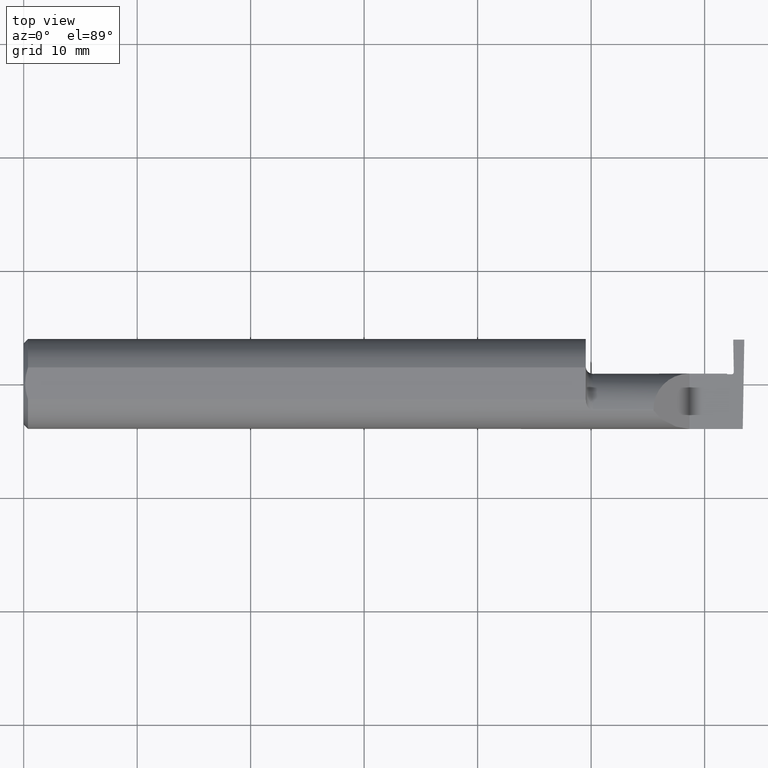
[diagram: clean part render]
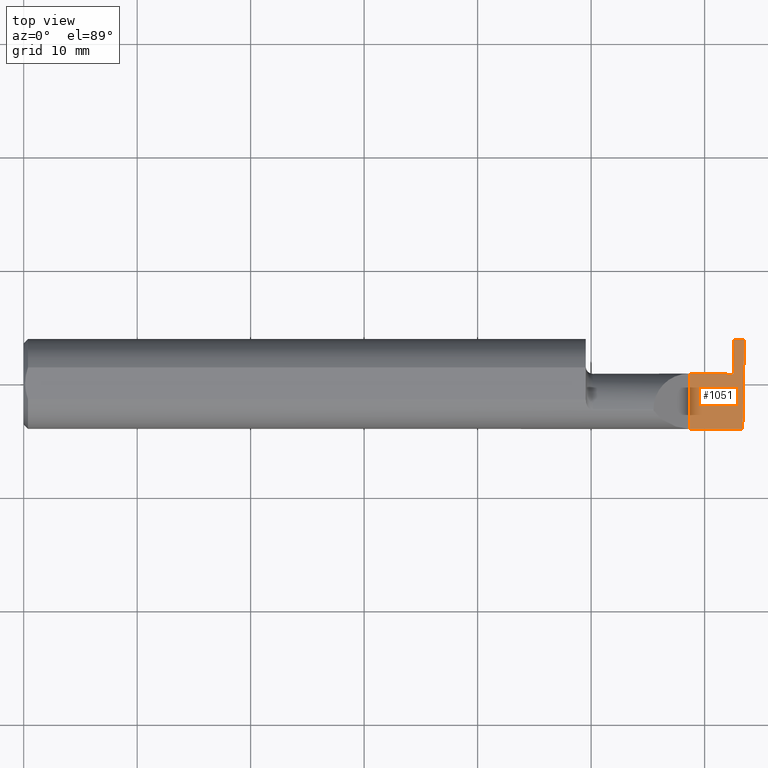
[diagram: same view with one face highlighted and labeled with its STEP entity id]
A machine part, top view. The second image highlights one B-rep face of the part: STEP entity #1051.
In plain terms, the highlighted planar face has unit normal (-0, 0, -1).
Its self-contained STEP definition (entity closure, byte-faithful):
#1 = CARTESIAN_POINT ( 'NONE',  ( 2.500000000000000000, 0.1539000000000000090, 0.000000000000000000 ) ) ;
#7 = VERTEX_POINT ( 'NONE', #173 ) ;
#19 = CARTESIAN_POINT ( 'NONE',  ( 2.441500000003368420, 0.03390000000033598776, -4.822709006013936333E-11 ) ) ;
#32 = CARTESIAN_POINT ( 'NONE',  ( 2.463542847896578625, 0.03686532263356468581, -1.231239365514285891E-10 ) ) ;
#46 = CARTESIAN_POINT ( 'NONE',  ( 2.310000000000000053, 0.03589999999999998748, 2.326828918379970872E-17 ) ) ;
#51 = VERTEX_POINT ( 'NONE', #673 ) ;
#79 = EDGE_CURVE ( 'NONE', #712, #605, #559, .T. ) ;
#81 = CARTESIAN_POINT ( 'NONE',  ( 2.461499999986525022, 0.1539000000000000090, -2.694222958124035986E-19 ) ) ;
#86 = ORIENTED_EDGE ( 'NONE', *, *, #344, .F. ) ;
#97 = ORIENTED_EDGE ( 'NONE', *, *, #936, .F. ) ;
#103 = B_SPLINE_CURVE_WITH_KNOTS ( 'NONE', 1,
 ( #532, #624 ),
 .UNSPECIFIED., .F., .F.,
 ( 2, 2 ),
 ( 0.000000000000000000, 0.0003802724434284823762 ),
 .UNSPECIFIED. ) ;
#105 = CARTESIAN_POINT ( 'NONE',  ( 2.494588929872255001, -0.1561000000000000443, 0.000000000000000000 ) ) ;
#112 = EDGE_CURVE ( 'NONE', #7, #712, #103, .T. ) ;
#143 = AXIS2_PLACEMENT_3D ( 'NONE', #163, #831, #1079 ) ;
#146 = DIRECTION ( 'NONE',  ( -0.000000000000000000, 1.000000000000000000, -0.000000000000000000 ) ) ;
#163 = CARTESIAN_POINT ( 'NONE',  ( 2.500000000000000000, -0.2000000000000000111, 0.000000000000000000 ) ) ;
#170 = VERTEX_POINT ( 'NONE', #46 ) ;
#173 = CARTESIAN_POINT ( 'NONE',  ( 2.456471356043859799, 0.03389999999999732117, -4.694856722559639658E-11 ) ) ;
#186 = LINE ( 'NONE', #771, #397 ) ;
#190 = EDGE_CURVE ( 'NONE', #818, #263, #822, .T. ) ;
#241 = DIRECTION ( 'NONE',  ( 1.000000000000000000, 0.000000000000000000, 0.000000000000000000 ) ) ;
#263 = VERTEX_POINT ( 'NONE', #973 ) ;
#266 = CARTESIAN_POINT ( 'NONE',  ( 2.399999999999999911, 0.1539000000000000090, -2.694222958124035986E-19 ) ) ;
#287 = CARTESIAN_POINT ( 'NONE',  ( 2.439500000000000668, 0.03590000000000006380, 7.121324356843854204E-18 ) ) ;
#290 = CARTESIAN_POINT ( 'NONE',  ( 2.461499999986525022, 0.1539000000000000090, -2.694222958124035986E-19 ) ) ;
#293 = CARTESIAN_POINT ( 'NONE',  ( 3.749399456654646757E-32, -0.1560999999999999888, 3.061616997868384127E-16 ) ) ;
#312 = LINE ( 'NONE', #490, #786 ) ;
#344 = EDGE_CURVE ( 'NONE', #263, #170, #312, .T. ) ;
#356 = DIRECTION ( 'NONE',  ( 1.000000000000000000, -0.000000000000000000, -0.000000000000000000 ) ) ;
#370 = VECTOR ( 'NONE', #241, 39.37007874015748143 ) ;
#377 = CARTESIAN_POINT ( 'NONE',  ( 2.460628833460035914, 0.03389999999987892976, -1.207202258587004251E-10 ) ) ;
#397 = VECTOR ( 'NONE', #527, 39.37007874015748143 ) ;
#448 = CARTESIAN_POINT ( 'NONE',  ( 2.441500000003368420, 0.03390000000033598776, -4.822709006013936333E-11 ) ) ;
#490 = CARTESIAN_POINT ( 'NONE',  ( 2.310000000000000053, -0.2000000000000000111, 2.326828918379970872E-17 ) ) ;
#493 = ORIENTED_EDGE ( 'NONE', *, *, #781, .T. ) ;
#504 =( BOUNDED_CURVE ( )  B_SPLINE_CURVE ( 3, ( #715, #32, #377, #1049 ),
 .UNSPECIFIED., .F., .T. ) 
 B_SPLINE_CURVE_WITH_KNOTS ( ( 4, 4 ),
 ( 8.673617379884047028E-19, 0.0002808519285676875157 ),
 .UNSPECIFIED. ) 
 CURVE ( )  GEOMETRIC_REPRESENTATION_ITEM ( )  RATIONAL_B_SPLINE_CURVE ( ( 1.000000000000000000, 0.8006061761999021531, 0.8006061761999021531, 1.000000000000000000 ) ) 
 REPRESENTATION_ITEM ( '' )  );
#527 = DIRECTION ( 'NONE',  ( -0.01745240643727716603, -0.9998476951563912696, 0.000000000000000000 ) ) ;
#532 = CARTESIAN_POINT ( 'NONE',  ( 2.456471356043859799, 0.03389999999999732117, -4.694856722559639658E-11 ) ) ;
#552 = ORIENTED_EDGE ( 'NONE', *, *, #190, .F. ) ;
#559 = B_SPLINE_CURVE_WITH_KNOTS ( 'NONE', 1,
 ( #19, #287 ),
 .UNSPECIFIED., .F., .F.,
 ( 2, 2 ),
 ( 0.000000000000000000, 7.184204902300483377E-05 ),
 .UNSPECIFIED. ) ;
#572 = EDGE_CURVE ( 'NONE', #613, #818, #186, .T. ) ;
#588 = VECTOR ( 'NONE', #356, 39.37007874015748143 ) ;
#592 = ORIENTED_EDGE ( 'NONE', *, *, #572, .F. ) ;
#596 = VERTEX_POINT ( 'NONE', #81 ) ;
#598 = B_SPLINE_CURVE_WITH_KNOTS ( 'NONE', 1,
 ( #290, #695 ),
 .UNSPECIFIED., .F., .F.,
 ( 2, 2 ),
 ( 6.843756573219531102E-15, 0.002867533701434297599 ),
 .UNSPECIFIED. ) ;
#605 = VERTEX_POINT ( 'NONE', #756 ) ;
#613 = VERTEX_POINT ( 'NONE', #1 ) ;
#624 = CARTESIAN_POINT ( 'NONE',  ( 2.441500000003368420, 0.03390000000033598776, -4.822709006013936333E-11 ) ) ;
#654 = CARTESIAN_POINT ( 'NONE',  ( 1.949999999999999956, 0.03590000000000001523, 6.735557395310447447E-17 ) ) ;
#673 = CARTESIAN_POINT ( 'NONE',  ( 2.463470289915465905, 0.04102216684465942453, -1.258616854567686712E-10 ) ) ;
#674 = ORIENTED_EDGE ( 'NONE', *, *, #112, .T. ) ;
#695 = CARTESIAN_POINT ( 'NONE',  ( 2.463470289915465905, 0.04102216684465942453, -1.258616854567686712E-10 ) ) ;
#712 = VERTEX_POINT ( 'NONE', #448 ) ;
#714 = EDGE_CURVE ( 'NONE', #51, #7, #504, .T. ) ;
#715 = CARTESIAN_POINT ( 'NONE',  ( 2.463470289915465905, 0.04102216684465942453, -1.258616854567686712E-10 ) ) ;
#738 = LINE ( 'NONE', #654, #370 ) ;
#756 = CARTESIAN_POINT ( 'NONE',  ( 2.439500000000000668, 0.03590000000000006380, 7.121324356843854204E-18 ) ) ;
#771 = CARTESIAN_POINT ( 'NONE',  ( 2.500000000000000000, 0.1539000000000000090, 0.000000000000000000 ) ) ;
#781 = EDGE_CURVE ( 'NONE', #596, #51, #598, .T. ) ;
#786 = VECTOR ( 'NONE', #146, 39.37007874015748143 ) ;
#818 = VERTEX_POINT ( 'NONE', #105 ) ;
#821 = PLANE ( 'NONE',  #143 ) ;
#822 = LINE ( 'NONE', #293, #927 ) ;
#831 = DIRECTION ( 'NONE',  ( -1.224646799147353700E-16, 0.000000000000000000, -1.000000000000000000 ) ) ;
#836 = LINE ( 'NONE', #266, #588 ) ;
#888 = DIRECTION ( 'NONE',  ( -1.000000000000000000, -0.000000000000000000, -0.000000000000000000 ) ) ;
#922 = EDGE_LOOP ( 'NONE', ( #552, #592, #984, #493, #948, #674, #929, #97, #86 ) ) ;
#927 = VECTOR ( 'NONE', #888, 39.37007874015748143 ) ;
#929 = ORIENTED_EDGE ( 'NONE', *, *, #79, .T. ) ;
#936 = EDGE_CURVE ( 'NONE', #170, #605, #738, .T. ) ;
#948 = ORIENTED_EDGE ( 'NONE', *, *, #714, .T. ) ;
#973 = CARTESIAN_POINT ( 'NONE',  ( 2.310000000000000053, -0.1560999999999999888, 2.326828918379970872E-17 ) ) ;
#984 = ORIENTED_EDGE ( 'NONE', *, *, #1090, .F. ) ;
#1049 = CARTESIAN_POINT ( 'NONE',  ( 2.456471356043859799, 0.03389999999999732117, -4.694856722559639658E-11 ) ) ;
#1051 = ADVANCED_FACE ( 'NONE', ( #1086 ), #821, .F. ) ;
#1079 = DIRECTION ( 'NONE',  ( -1.000000000000000000, 0.000000000000000000, 1.224646799147353700E-16 ) ) ;
#1086 = FACE_OUTER_BOUND ( 'NONE', #922, .T. ) ;
#1090 = EDGE_CURVE ( 'NONE', #596, #613, #836, .T. ) ;